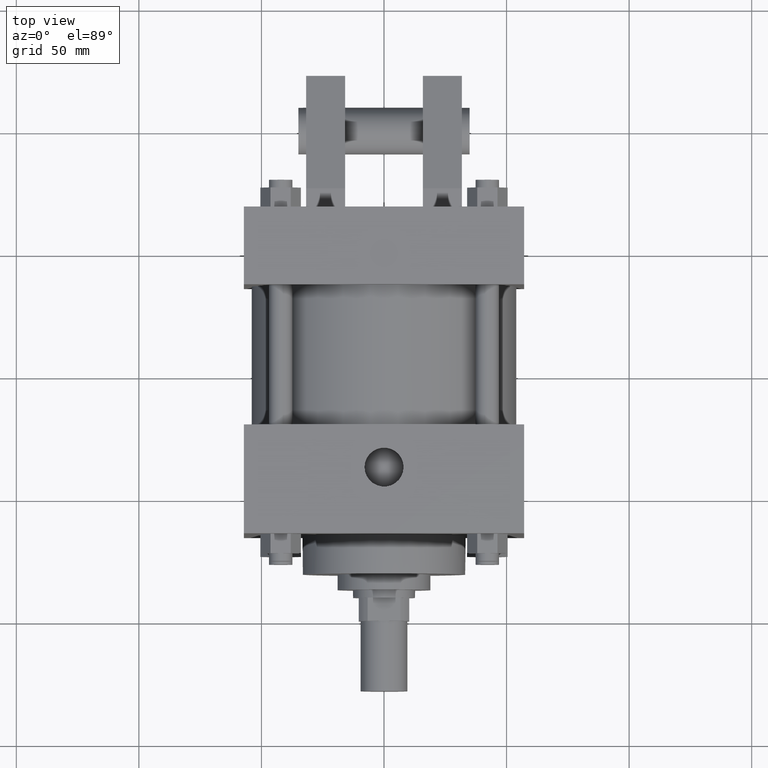
[diagram: clean part render]
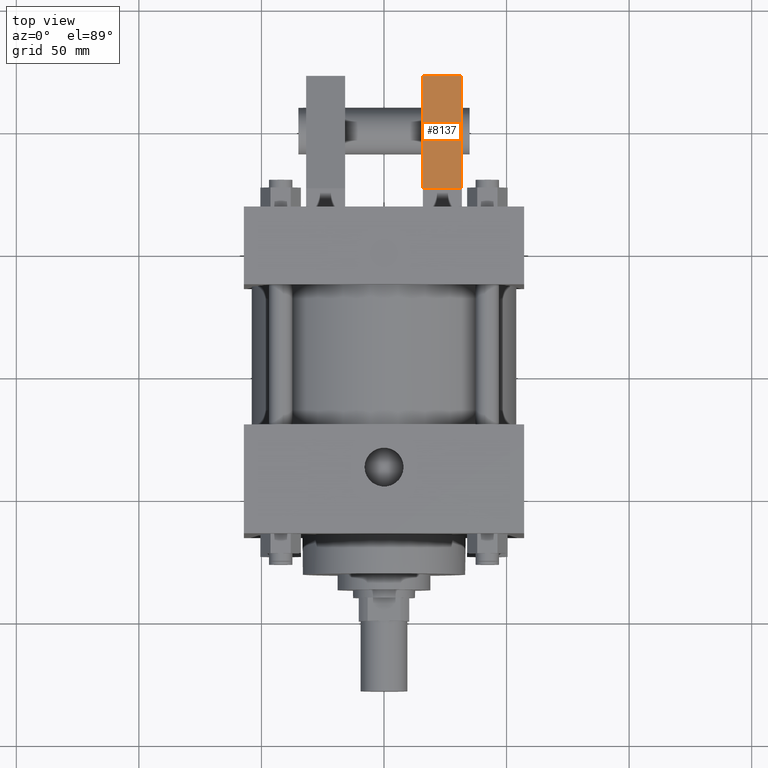
[diagram: same view with one face highlighted and labeled with its STEP entity id]
A machine part, top view. The second image highlights one B-rep face of the part: STEP entity #8137.
In plain terms, the highlighted planar face has unit normal (0, -0.2187, -0.9758).
Its self-contained STEP definition (entity closure, byte-faithful):
#4546=VERTEX_POINT('',#4547);
#4547=CARTESIAN_POINT('',(1.587500000E+001,1.762125000E+002,2.936875000E+001));
#4548=EDGE_CURVE('',#4546,#4553,#4549,.T.);
#4549=LINE('',#4550,#4551);
#4550=CARTESIAN_POINT('',(1.587500000E+001,2.222500000E+002,1.905000000E+001));
#4551=VECTOR('',#4552,1.0E+000);
#4552=DIRECTION('',(0.0E+000,9.757895770E-001,-2.187114569E-001));
#4553=VERTEX_POINT('',#4554);
#4554=CARTESIAN_POINT('',(1.587500000E+001,2.222500000E+002,1.905000000E+001));
#4744=VERTEX_POINT('',#4745);
#4745=CARTESIAN_POINT('',(3.175000000E+001,2.222500000E+002,1.905000000E+001));
#4746=EDGE_CURVE('',#4751,#4744,#4747,.T.);
#4747=LINE('',#4748,#4749);
#4748=CARTESIAN_POINT('',(3.175000000E+001,2.222500000E+002,1.905000000E+001));
#4749=VECTOR('',#4750,1.0E+000);
#4750=DIRECTION('',(0.0E+000,9.757895770E-001,-2.187114569E-001));
#4751=VERTEX_POINT('',#4752);
#4752=CARTESIAN_POINT('',(3.175000000E+001,1.762125000E+002,2.936875000E+001));
#5031=LINE('',#5032,#5033);
#5032=CARTESIAN_POINT('',(-3.175000000E+001,2.222500000E+002,1.905000000E+001));
#5033=VECTOR('',#5034,1.0E+000);
#5034=DIRECTION('',(1.0E+000,0.0E+000,0.0E+000));
#5046=EDGE_CURVE('',#4553,#4744,#5031,.T.);
#5054=LINE('',#5055,#5056);
#5055=CARTESIAN_POINT('',(-3.175000000E+001,1.762125000E+002,2.936875000E+001));
#5056=VECTOR('',#5057,1.0E+000);
#5057=DIRECTION('',(1.0E+000,0.0E+000,0.0E+000));
#5058=PLANE('',#5059);
#5059=AXIS2_PLACEMENT_3D('',#5060,#5061,#5062);
#5060=CARTESIAN_POINT('',(-3.175000000E+001,2.222500000E+002,1.905000000E+001));
#5061=DIRECTION('',(0.0E+000,-2.187114569E-001,-9.757895770E-001));
#5062=DIRECTION('',(0.0E+000,-9.757895770E-001,2.187114569E-001));
#5063=FACE_OUTER_BOUND('',#5064,.T.);
#5064=EDGE_LOOP('',(#5065,#5066,#5067,#5068));
#5065=ORIENTED_EDGE('',*,*,#4548,.F.);
#5066=ORIENTED_EDGE('',*,*,#5069,.T.);
#5067=ORIENTED_EDGE('',*,*,#4746,.T.);
#5068=ORIENTED_EDGE('',*,*,#5046,.F.);
#5069=EDGE_CURVE('',#4546,#4751,#5054,.T.);
#8137=ADVANCED_FACE('',(#5063),#5058,.F.);